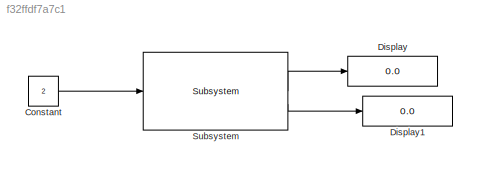
MODEL slx_f32ffdf7a7c1
KIND model
CONFIG AbsTol = auto
CONFIG EnableMultiTasking = off
CONFIG FixedStep = auto
CONFIG MaxStep = auto
CONFIG MinStep = auto
CONFIG RelTol = 1e-3
CONFIG SampleTimeConstraint = Unconstrained
CONFIG SolverName = VariableStepAuto
CONFIG StartTime = 0.0
CONFIG StopTime = 10.0
BLOCK [Constant] Constant
  Value = 2
BLOCK [Display] Display
  Decimation = 1
BLOCK [Display] Display1
  Decimation = 1
BLOCK [Reference] Subsystem  REF=Gain_and_Thresh/Subsystem
  SourceBlock = Gain_and_Thresh/Subsystem
LINE Constant:1 -> Subsystem:1
LINE Subsystem:1 -> Display:1
LINE Subsystem:2 -> Display1:1
